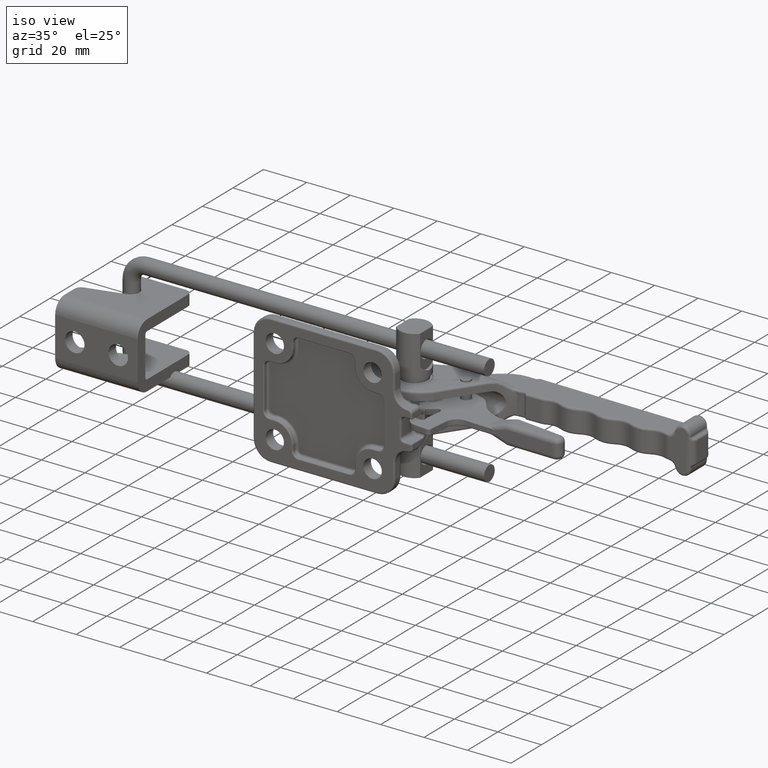
[diagram: clean part render]
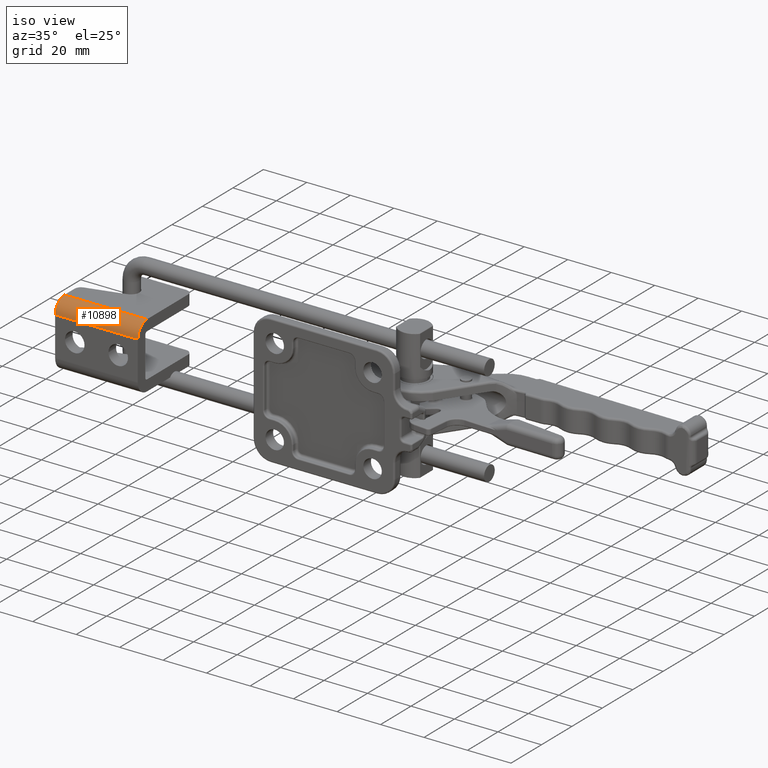
[diagram: same view with one face highlighted and labeled with its STEP entity id]
A machine part, iso view. The second image highlights one B-rep face of the part: STEP entity #10898.
In plain terms, the highlighted cylindrical surface (edge-blend (fillet) strip) has radius 6 mm, axis along (-1, 0, -0).
Its self-contained STEP definition (entity closure, byte-faithful):
#1599=FACE_OUTER_BOUND('',#2380,.T.);
#2380=EDGE_LOOP('',(#9847,#9848,#9849,#9850));
#2910=LINE('',#30993,#3440);
#2911=LINE('',#30999,#3441);
#3440=VECTOR('',#15380,38.);
#3441=VECTOR('',#15387,38.);
#4167=CIRCLE('',#12207,6.);
#4172=CIRCLE('',#12214,6.);
#5106=VERTEX_POINT('',#30935);
#5107=VERTEX_POINT('',#30937);
#5118=VERTEX_POINT('',#30963);
#5119=VERTEX_POINT('',#30965);
#6677=EDGE_CURVE('',#5107,#5106,#4167,.T.);
#6691=EDGE_CURVE('',#5119,#5118,#4172,.T.);
#6705=EDGE_CURVE('',#5119,#5106,#2910,.T.);
#6708=EDGE_CURVE('',#5107,#5118,#2911,.T.);
#9847=ORIENTED_EDGE('',*,*,#6677,.T.);
#9848=ORIENTED_EDGE('',*,*,#6705,.F.);
#9849=ORIENTED_EDGE('',*,*,#6691,.T.);
#9850=ORIENTED_EDGE('',*,*,#6708,.F.);
#10201=CYLINDRICAL_SURFACE('',#12227,6.);
#10898=ADVANCED_FACE('',(#1599),#10201,.T.);
#12207=AXIS2_PLACEMENT_3D('',#30938,#15325,#15326);
#12214=AXIS2_PLACEMENT_3D('',#30966,#15348,#15349);
#12227=AXIS2_PLACEMENT_3D('',#30998,#15385,#15386);
#15325=DIRECTION('center_axis',(8.79946522152E-14,1.,0.));
#15326=DIRECTION('ref_axis',(1.,-8.79946522152E-14,6.73180030238E-12));
#15348=DIRECTION('center_axis',(-8.79946522152E-14,-1.,0.));
#15349=DIRECTION('ref_axis',(1.681321748492E-12,-1.47947322520405E-25,-1.));
#15380=DIRECTION('',(-2.145652077065E-14,-1.,0.));
#15385=DIRECTION('center_axis',(-8.79946522152E-14,-1.,0.));
#15386=DIRECTION('ref_axis',(1.59487238231E-12,-1.40340240608996E-25,-1.));
#15387=DIRECTION('',(5.413213736909E-14,1.,-3.542896969951E-13));
#30935=CARTESIAN_POINT('',(9.000000000011,-66.02845344,0.));
#30937=CARTESIAN_POINT('',(15.,-66.02845344,6.000000000013));
#30938=CARTESIAN_POINT('Origin',(8.999999999997,-66.02845344,6.));
#30963=CARTESIAN_POINT('',(15.,-28.02845344,6.));
#30965=CARTESIAN_POINT('',(9.00000000001,-28.02845344,0.));
#30966=CARTESIAN_POINT('Origin',(9.,-28.02845344,6.));
#30993=CARTESIAN_POINT('',(9.00000000001,-28.02845344,0.));
#30998=CARTESIAN_POINT('Origin',(9.,-27.02845344,6.));
#30999=CARTESIAN_POINT('',(15.,-66.02845344,6.000000000013));